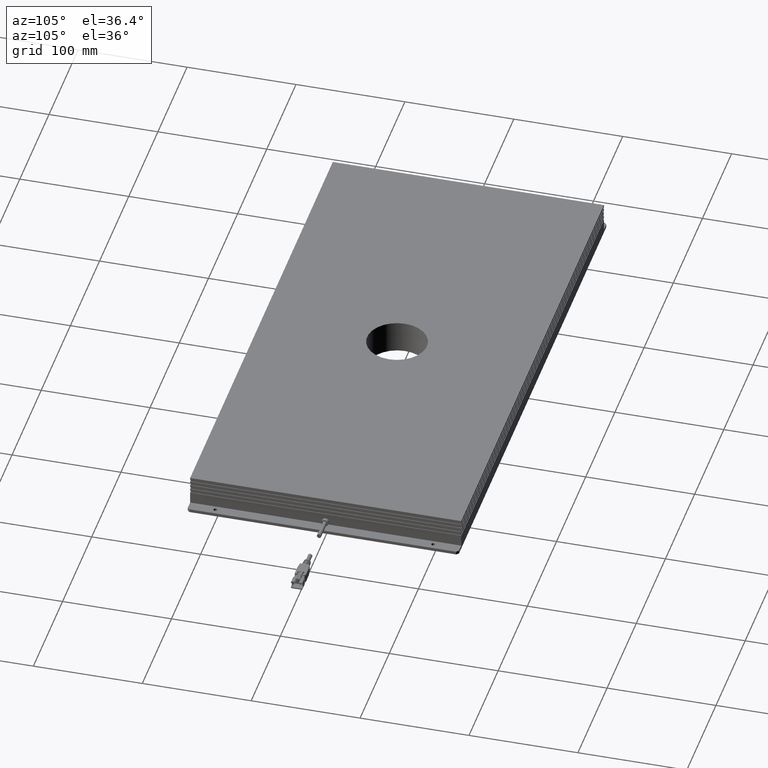
[diagram: clean part render]
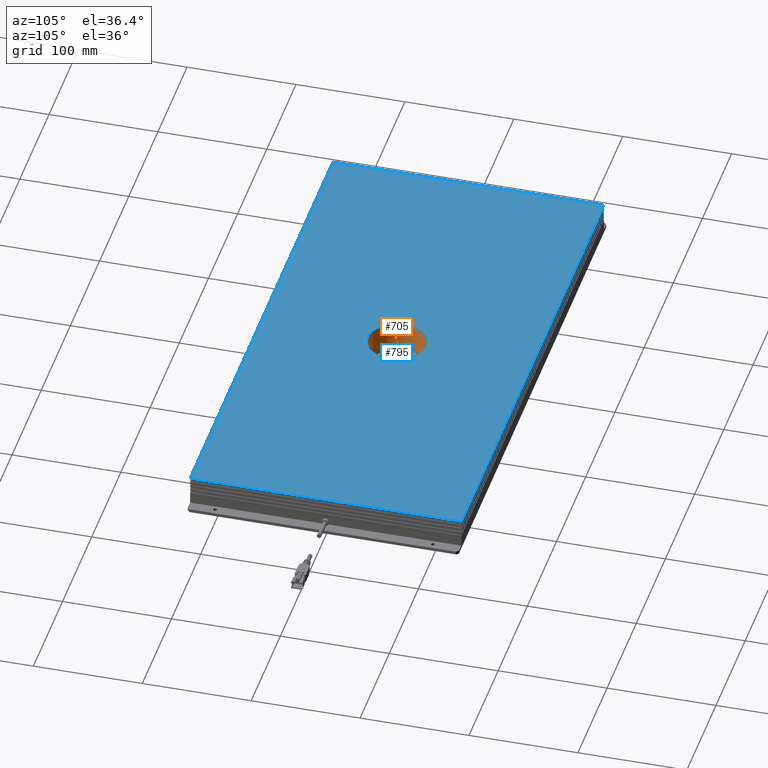
[diagram: same view with the hole feature highlighted: cylindrical wall and planar end face, labeled with their STEP entity ids]
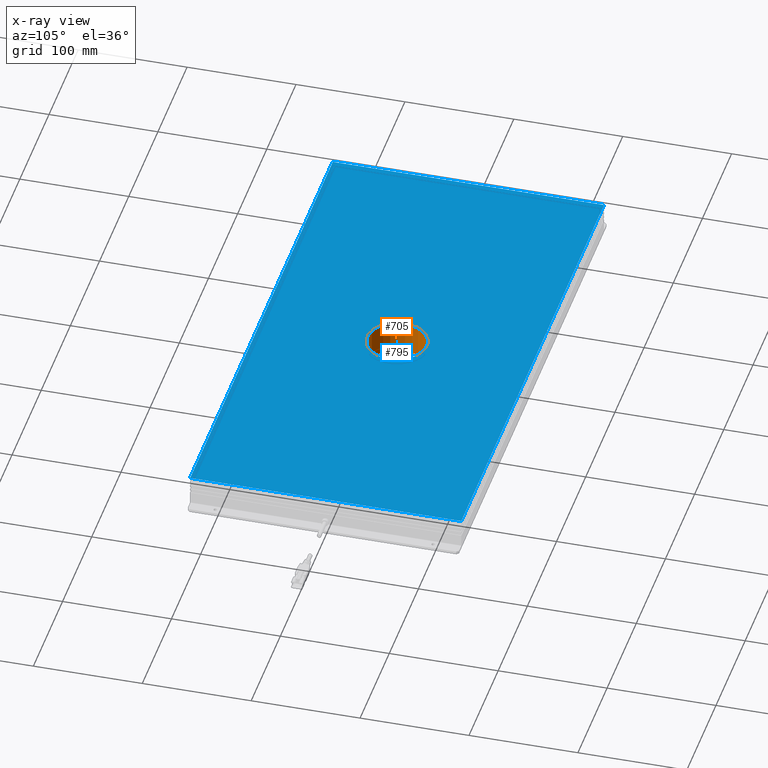
[diagram: x-ray of the same camera — body ghosted, the hole faces saturated]
A machine part, auxiliary view. The highlighted faces form one hole feature of diameter 55 mm: the cylindrical wall (entity #705, orange) and its adjacent planar end face (entity #795, blue) — they share a circular edge in the B-rep.
The next image is the same camera in x-ray (body ghosted, the hole faces saturated) — the bore reads through the body.
Wall:
#705=ADVANCED_FACE('0:34',(#1998,#1999),#2000,.F.);
#1998=FACE_OUTER_BOUND('',#3785,.T.);
#1999=FACE_OUTER_BOUND('',#3786,.T.);
#2000=CYLINDRICAL_SURFACE('',#3787,0.0275);
#3785=EDGE_LOOP('',(#6767));
#3786=EDGE_LOOP('',(#6768));
#3787=AXIS2_PLACEMENT_3D('',#6769,#6770,#6771);
#6767=ORIENTED_EDGE('',*,*,#9325,.F.);
#6768=ORIENTED_EDGE('',*,*,#9326,.T.);
#6769=CARTESIAN_POINT('',(0.0,-5.23722504166407E-17,0.03));
#6770=DIRECTION('',(0.0,3.49148336110938E-15,-1.0));
#6771=DIRECTION('',(0.0,1.0,3.49148336110938E-15));
#9325=EDGE_CURVE('0:325',#9749,#9749,#9750,.T.);
#9326=EDGE_CURVE('1:83',#9751,#9751,#9752,.T.);
#9749=VERTEX_POINT('',#10294);
#9750=CIRCLE('',#10295,0.0275);
#9751=VERTEX_POINT('',#10296);
#9752=CIRCLE('',#10297,0.0275);
#10294=CARTESIAN_POINT('',(0.0275,5.06883610678131E-17,-5.87927164338092E-33));
#10295=AXIS2_PLACEMENT_3D('',#10972,#10973,#10974);
#10296=CARTESIAN_POINT('',(0.0275,-5.40561397654683E-17,0.03));
#10297=AXIS2_PLACEMENT_3D('',#10975,#10976,#10977);
#10972=CARTESIAN_POINT('',(0.0,5.23722504166407E-17,0.0));
#10973=DIRECTION('',(0.0,-3.49148336110938E-15,1.0));
#10974=DIRECTION('',(1.0,-6.12323399573677E-17,-2.13791696122942E-31));
#10975=CARTESIAN_POINT('',(0.0,-5.23722504166407E-17,0.03));
#10976=DIRECTION('',(0.0,-3.49148336110938E-15,1.0));
#10977=DIRECTION('',(1.0,-6.12323399573677E-17,-2.13791696122942E-31));
End face:
#795=ADVANCED_FACE('0:172',(#2151,#2152),#2153,.T.);
#2151=FACE_OUTER_BOUND('',#3938,.T.);
#2152=FACE_BOUND('',#3939,.T.);
#2153=PLANE('',#3940);
#3938=EDGE_LOOP('',(#7170,#7171,#7172,#7173));
#3939=EDGE_LOOP('',(#7174));
#3940=AXIS2_PLACEMENT_3D('',#7175,#7176,#7177);
#7170=ORIENTED_EDGE('',*,*,#9497,.T.);
#7171=ORIENTED_EDGE('',*,*,#9398,.F.);
#7172=ORIENTED_EDGE('',*,*,#9494,.T.);
#7173=ORIENTED_EDGE('',*,*,#9498,.T.);
#7174=ORIENTED_EDGE('',*,*,#9326,.F.);
#7175=CARTESIAN_POINT('',(0.0,-5.23722504166407E-17,0.03));
#7176=DIRECTION('',(0.0,-3.49148336110938E-15,1.0));
#7177=DIRECTION('',(1.0,0.0,0.0));
#9326=EDGE_CURVE('1:83',#9751,#9751,#9752,.T.);
#9398=EDGE_CURVE('0:604',#9872,#9875,#9876,.T.);
#9494=EDGE_CURVE('0:664',#9872,#10003,#10006,.T.);
#9497=EDGE_CURVE('0:661',#10009,#9875,#10010,.T.);
#9498=EDGE_CURVE('0:667',#10003,#10009,#10011,.T.);
#9751=VERTEX_POINT('',#10296);
#9752=CIRCLE('',#10297,0.0275);
#9872=VERTEX_POINT('',#10469);
#9875=VERTEX_POINT('',#10473);
#9876=LINE('',#10474,#10475);
#10003=VERTEX_POINT('',#10664);
#10006=LINE('',#10668,#10669);
#10009=VERTEX_POINT('',#10673);
#10010=LINE('',#10674,#10675);
#10011=LINE('',#10676,#10677);
#10296=CARTESIAN_POINT('',(0.0275,-5.40561397654683E-17,0.03));
#10297=AXIS2_PLACEMENT_3D('',#10975,#10976,#10977);
#10469=CARTESIAN_POINT('',(-0.2445,-0.1245,0.0299999999999996));
#10473=CARTESIAN_POINT('',(-0.2445,0.1245,0.0300000000000004));
#10474=CARTESIAN_POINT('',(-0.2445,-0.1245,0.0299999999999996));
#10475=VECTOR('',#11043,1.0);
#10664=CARTESIAN_POINT('',(0.2445,-0.1245,0.0299999999999996));
#10668=CARTESIAN_POINT('',(-0.2445,-0.1245,0.0299999999999996));
#10669=VECTOR('',#11113,1.0);
#10673=CARTESIAN_POINT('',(0.2445,0.1245,0.0300000000000004));
#10674=CARTESIAN_POINT('',(0.2445,0.1245,0.0300000000000004));
#10675=VECTOR('',#11115,1.0);
#10676=CARTESIAN_POINT('',(0.2445,-0.1245,0.0299999999999996));
#10677=VECTOR('',#11116,1.0);
#10975=CARTESIAN_POINT('',(0.0,-5.23722504166407E-17,0.03));
#10976=DIRECTION('',(0.0,-3.49148336110938E-15,1.0));
#10977=DIRECTION('',(1.0,-6.12323399573677E-17,-2.13791696122942E-31));
#11043=DIRECTION('',(0.0,1.0,3.49148336110938E-15));
#11113=DIRECTION('',(1.0,0.0,0.0));
#11115=DIRECTION('',(-1.0,-0.0,0.0));
#11116=DIRECTION('',(0.0,1.0,3.49148336110938E-15));